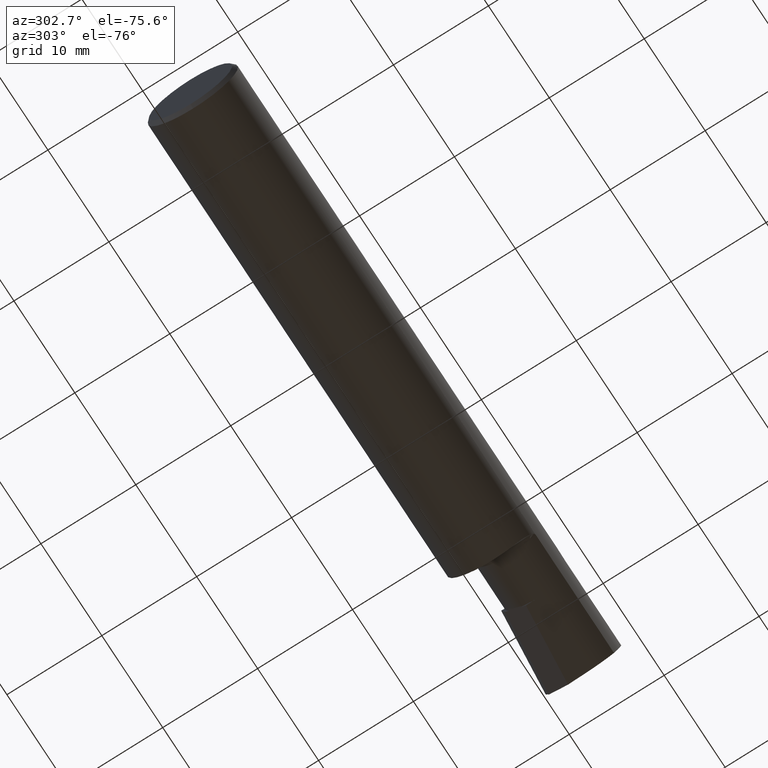
[diagram: clean part render]
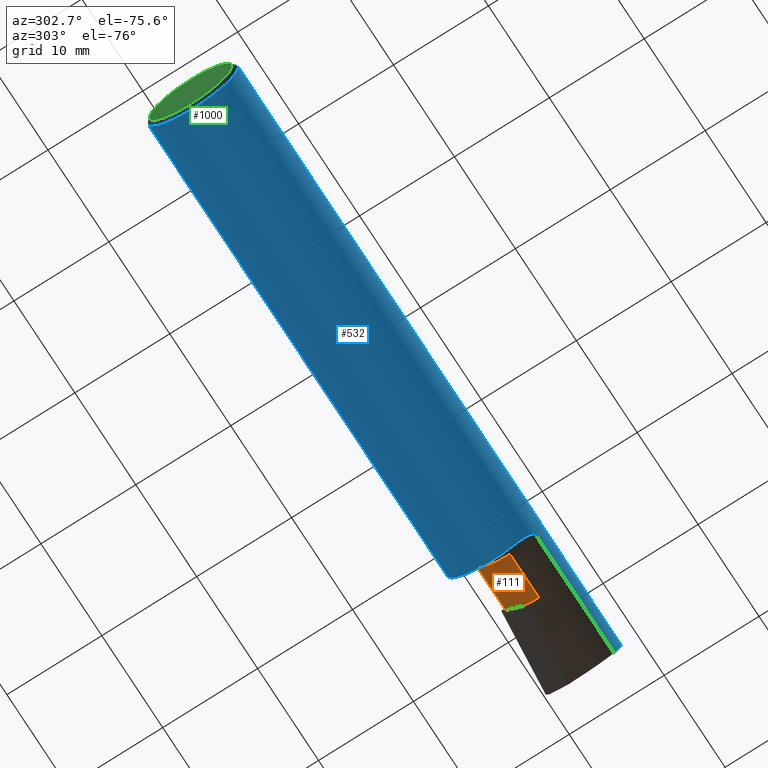
[diagram: same view with three faces highlighted in distinct colors, each labeled with its STEP entity id]
A machine part, auxiliary view with three faces highlighted in distinct colors.
Their STEP definitions:

[orange] entity #111 — the highlighted cylindrical surface (partial cylindrical patch) has radius 3.556 mm, axis along (-1, -0, -0).
#2 = CARTESIAN_POINT ( 'NONE',  ( 2.155148871178937053, 0.06550658106097376199, -0.06713175003679724973 ) ) ;
#4 = CARTESIAN_POINT ( 'NONE',  ( 1.974999999999999867, -0.05734999999999998432, -0.1400000000000000133 ) ) ;
#36 = VERTEX_POINT ( 'NONE', #461 ) ;
#40 = DIRECTION ( 'NONE',  ( 0.000000000000000000, 0.000000000000000000, 1.000000000000000000 ) ) ;
#63 = CARTESIAN_POINT ( 'NONE',  ( 1.949999999999999956, -0.05735000000000000514, 0.000000000000000000 ) ) ;
#67 = DIRECTION ( 'NONE',  ( 1.000000000000000000, 0.000000000000000000, 0.000000000000000000 ) ) ;
#71 = CARTESIAN_POINT ( 'NONE',  ( 2.160000000000000142, 0.01457505805632096189, -0.1201115565780198624 ) ) ;
#75 =( BOUNDED_CURVE ( )  B_SPLINE_CURVE ( 3, ( #640, #254, #343, #727 ),
 .UNSPECIFIED., .F., .T. ) 
 B_SPLINE_CURVE_WITH_KNOTS ( ( 4, 4 ),
 ( 4.461144318190936708, 5.001398664979005204 ),
 .UNSPECIFIED. ) 
 CURVE ( )  GEOMETRIC_REPRESENTATION_ITEM ( )  RATIONAL_B_SPLINE_CURVE ( ( 1.000000000000000000, 0.9758246449535429301, 0.9758246449535429301, 1.000000000000000000 ) ) 
 REPRESENTATION_ITEM ( '' )  );
#79 = VERTEX_POINT ( 'NONE', #550 ) ;
#82 = VECTOR ( 'NONE', #860, 39.37007874015748143 ) ;
#83 = VECTOR ( 'NONE', #146, 39.37007874015748143 ) ;
#87 = CARTESIAN_POINT ( 'NONE',  ( 2.129999999999999893, -0.05735000000000000514, 0.000000000000000000 ) ) ;
#89 = ORIENTED_EDGE ( 'NONE', *, *, #238, .F. ) ;
#107 = ORIENTED_EDGE ( 'NONE', *, *, #627, .F. ) ;
#111 = ADVANCED_FACE ( 'NONE', ( #248 ), #736, .T. ) ;
#114 = DIRECTION ( 'NONE',  ( -1.000000000000000000, -0.000000000000000000, -0.000000000000000000 ) ) ;
#117 = VERTEX_POINT ( 'NONE', #834 ) ;
#126 = VERTEX_POINT ( 'NONE', #71 ) ;
#128 = CARTESIAN_POINT ( 'NONE',  ( 2.152631084800518124, 0.06581154757560825352, -0.06656750858174879937 ) ) ;
#131 = ORIENTED_EDGE ( 'NONE', *, *, #760, .T. ) ;
#133 = EDGE_CURVE ( 'NONE', #138, #79, #846, .T. ) ;
#136 = ORIENTED_EDGE ( 'NONE', *, *, #478, .T. ) ;
#138 = VERTEX_POINT ( 'NONE', #933 ) ;
#146 = DIRECTION ( 'NONE',  ( 1.000000000000000000, 0.000000000000000000, 0.000000000000000000 ) ) ;
#168 = CARTESIAN_POINT ( 'NONE',  ( 2.157616951081173795, 0.01403134646253009592, -0.1204354739152723591 ) ) ;
#186 = CARTESIAN_POINT ( 'NONE',  ( 2.158417962045774630, 0.01421282755745795039, -0.1203279112139161305 ) ) ;
#203 = AXIS2_PLACEMENT_3D ( 'NONE', #382, #114, #377 ) ;
#209 =( BOUNDED_CURVE ( )  B_SPLINE_CURVE ( 3, ( #694, #1087, #1176, #700 ),
 .UNSPECIFIED., .F., .F. ) 
 B_SPLINE_CURVE_WITH_KNOTS ( ( 4, 4 ),
 ( 4.712746123249424102, 6.283185307179586232 ),
 .UNSPECIFIED. ) 
 CURVE ( )  GEOMETRIC_REPRESENTATION_ITEM ( )  RATIONAL_B_SPLINE_CURVE ( ( 1.000000000000000000, 0.8048220259884033556, 0.8048220259884033556, 1.000000000000000000 ) ) 
 REPRESENTATION_ITEM ( '' )  );
#225 = ORIENTED_EDGE ( 'NONE', *, *, #1091, .T. ) ;
#238 = EDGE_CURVE ( 'NONE', #36, #710, #475, .T. ) ;
#248 = FACE_OUTER_BOUND ( 'NONE', #1202, .T. ) ;
#254 = CARTESIAN_POINT ( 'NONE',  ( 2.155966999657742189, 0.03598794709314035584, -0.1074219350815595470 ) ) ;
#266 = AXIS2_PLACEMENT_3D ( 'NONE', #553, #67, #1228 ) ;
#295 = CARTESIAN_POINT ( 'NONE',  ( 2.157605214910747193, 0.06519774435901247445, -0.06769388248219163073 ) ) ;
#316 = CARTESIAN_POINT ( 'NONE',  ( 2.152631084800518124, 0.06581154757560825352, -0.06656750858174879937 ) ) ;
#321 = VERTEX_POINT ( 'NONE', #4 ) ;
#334 = ORIENTED_EDGE ( 'NONE', *, *, #962, .T. ) ;
#336 = CARTESIAN_POINT ( 'NONE',  ( 2.160000000000000142, -0.05734999999999997045, -0.1400000000000000133 ) ) ;
#343 = CARTESIAN_POINT ( 'NONE',  ( 2.154263870478252407, 0.05367561990090638502, -0.08902109991371780218 ) ) ;
#353 = EDGE_CURVE ( 'NONE', #138, #36, #209, .T. ) ;
#370 = CIRCLE ( 'NONE', #266, 0.1400000000000000133 ) ;
#377 = DIRECTION ( 'NONE',  ( 0.000000000000000000, 0.000000000000000000, 1.000000000000000000 ) ) ;
#382 = CARTESIAN_POINT ( 'NONE',  ( 2.160000000000000142, -0.05735000000000000514, 0.000000000000000000 ) ) ;
#404 = CARTESIAN_POINT ( 'NONE',  ( 1.949999999999999956, -0.05734999999999998432, -0.1400000000000000133 ) ) ;
#419 = CARTESIAN_POINT ( 'NONE',  ( 2.160000000000000142, 0.08265000000000000124, -5.122214988120493535E-17 ) ) ;
#444 = AXIS2_PLACEMENT_3D ( 'NONE', #87, #854, #643 ) ;
#450 = DIRECTION ( 'NONE',  ( 0.000000000000000000, 0.000000000000000000, 1.000000000000000000 ) ) ;
#461 = CARTESIAN_POINT ( 'NONE',  ( 1.990050000000000097, -0.05735000000000000514, 0.1400000000000000133 ) ) ;
#466 = CIRCLE ( 'NONE', #203, 0.1400000000000000133 ) ;
#475 = LINE ( 'NONE', #878, #82 ) ;
#478 = EDGE_CURVE ( 'NONE', #79, #990, #1011, .T. ) ;
#529 = DIRECTION ( 'NONE',  ( -1.000000000000000000, -0.000000000000000000, -0.000000000000000000 ) ) ;
#540 =( BOUNDED_CURVE ( )  B_SPLINE_CURVE ( 3, ( #1145, #1046, #186, #168 ),
 .UNSPECIFIED., .F., .T. ) 
 B_SPLINE_CURVE_WITH_KNOTS ( ( 4, 4 ),
 ( 3.402587604115851594, 3.407108222530763619 ),
 .UNSPECIFIED. ) 
 CURVE ( )  GEOMETRIC_REPRESENTATION_ITEM ( )  RATIONAL_B_SPLINE_CURVE ( ( 1.000000000000000000, 0.9999982970014872352, 0.9999982970014872352, 1.000000000000000000 ) ) 
 REPRESENTATION_ITEM ( '' )  );
#545 = AXIS2_PLACEMENT_3D ( 'NONE', #63, #947, #450 ) ;
#550 = CARTESIAN_POINT ( 'NONE',  ( 2.129999999999999893, 0.08265000000000000124, -5.122214988120493535E-17 ) ) ;
#553 = CARTESIAN_POINT ( 'NONE',  ( 1.974999999999999867, -0.05735000000000000514, 0.000000000000000000 ) ) ;
#594 = ORIENTED_EDGE ( 'NONE', *, *, #872, .T. ) ;
#627 = EDGE_CURVE ( 'NONE', #117, #811, #75, .T. ) ;
#638 = ORIENTED_EDGE ( 'NONE', *, *, #1229, .F. ) ;
#640 = CARTESIAN_POINT ( 'NONE',  ( 2.157616951081173795, 0.01403134646253009592, -0.1204354739152723591 ) ) ;
#643 = DIRECTION ( 'NONE',  ( 0.000000000000000000, 0.000000000000000000, 1.000000000000000000 ) ) ;
#694 = CARTESIAN_POINT ( 'NONE',  ( 2.129999999999999893, 0.08264999107142834145, 4.999999999973721212E-05 ) ) ;
#700 = CARTESIAN_POINT ( 'NONE',  ( 1.990050000000000097, -0.05735000000000000514, 0.1400000000000000133 ) ) ;
#704 = LINE ( 'NONE', #404, #1085 ) ;
#710 = VERTEX_POINT ( 'NONE', #987 ) ;
#727 = CARTESIAN_POINT ( 'NONE',  ( 2.152631084800518124, 0.06581154757560825352, -0.06656750858174879937 ) ) ;
#734 = CARTESIAN_POINT ( 'NONE',  ( 2.160000000000000142, -0.05735000000000000514, 0.000000000000000000 ) ) ;
#736 = CYLINDRICAL_SURFACE ( 'NONE', #545, 0.1400000000000000133 ) ;
#760 = EDGE_CURVE ( 'NONE', #126, #935, #466, .T. ) ;
#811 = VERTEX_POINT ( 'NONE', #128 ) ;
#824 = CARTESIAN_POINT ( 'NONE',  ( 2.160000000000000142, 0.06488505205392350317, -0.06825387937234494995 ) ) ;
#834 = CARTESIAN_POINT ( 'NONE',  ( 2.157616951081173795, 0.01403134646253009592, -0.1204354739152723591 ) ) ;
#846 = CIRCLE ( 'NONE', #444, 0.1400000000000000133 ) ;
#854 = DIRECTION ( 'NONE',  ( -1.000000000000000000, -0.000000000000000000, -0.000000000000000000 ) ) ;
#860 = DIRECTION ( 'NONE',  ( -1.000000000000000000, -0.000000000000000000, -0.000000000000000000 ) ) ;
#872 = EDGE_CURVE ( 'NONE', #935, #321, #704, .T. ) ;
#877 = CARTESIAN_POINT ( 'NONE',  ( 2.160000000000000142, 0.06488505205392350317, -0.06825387937234494995 ) ) ;
#878 = CARTESIAN_POINT ( 'NONE',  ( 1.949999999999999956, -0.05735000000000000514, 0.1400000000000000133 ) ) ;
#902 = CARTESIAN_POINT ( 'NONE',  ( 1.949999999999999956, 0.08265000000000000124, -5.122214988120493535E-17 ) ) ;
#933 = CARTESIAN_POINT ( 'NONE',  ( 2.129999999999999893, 0.08264999107142834145, 4.999999999973721212E-05 ) ) ;
#935 = VERTEX_POINT ( 'NONE', #336 ) ;
#940 =( BOUNDED_CURVE ( )  B_SPLINE_CURVE ( 3, ( #316, #2, #295, #877 ),
 .UNSPECIFIED., .F., .T. ) 
 B_SPLINE_CURVE_WITH_KNOTS ( ( 4, 4 ),
 ( 2.866853875742696456, 2.880597703063734638 ),
 .UNSPECIFIED. ) 
 CURVE ( )  GEOMETRIC_REPRESENTATION_ITEM ( )  RATIONAL_B_SPLINE_CURVE ( ( 1.000000000000000000, 0.9999842589961592809, 0.9999842589961592809, 1.000000000000000000 ) ) 
 REPRESENTATION_ITEM ( '' )  );
#947 = DIRECTION ( 'NONE',  ( -1.000000000000000000, -0.000000000000000000, -0.000000000000000000 ) ) ;
#961 = VERTEX_POINT ( 'NONE', #824 ) ;
#962 = EDGE_CURVE ( 'NONE', #990, #961, #1009, .T. ) ;
#987 = CARTESIAN_POINT ( 'NONE',  ( 1.974999999999999867, -0.05735000000000000514, 0.1400000000000000133 ) ) ;
#988 = AXIS2_PLACEMENT_3D ( 'NONE', #734, #529, #40 ) ;
#990 = VERTEX_POINT ( 'NONE', #419 ) ;
#1009 = CIRCLE ( 'NONE', #988, 0.1400000000000000133 ) ;
#1011 = LINE ( 'NONE', #902, #83 ) ;
#1046 = CARTESIAN_POINT ( 'NONE',  ( 2.159212313038161746, 0.01439406506403543770, -0.1202199385842880330 ) ) ;
#1084 = DIRECTION ( 'NONE',  ( -1.000000000000000000, -0.000000000000000000, -0.000000000000000000 ) ) ;
#1085 = VECTOR ( 'NONE', #1084, 39.37007874015748143 ) ;
#1087 = CARTESIAN_POINT ( 'NONE',  ( 2.048013125378817634, 0.08262071004291055010, 0.08203687462118212925 ) ) ;
#1091 = EDGE_CURVE ( 'NONE', #321, #710, #370, .T. ) ;
#1111 = ORIENTED_EDGE ( 'NONE', *, *, #1133, .F. ) ;
#1133 = EDGE_CURVE ( 'NONE', #126, #117, #540, .T. ) ;
#1138 = ORIENTED_EDGE ( 'NONE', *, *, #133, .T. ) ;
#1145 = CARTESIAN_POINT ( 'NONE',  ( 2.160000000000000142, 0.01457505805632096189, -0.1201115565780198624 ) ) ;
#1176 = CARTESIAN_POINT ( 'NONE',  ( 1.990050000000000097, 0.02463687984993753397, 0.1400000000000000133 ) ) ;
#1182 = ORIENTED_EDGE ( 'NONE', *, *, #353, .F. ) ;
#1202 = EDGE_LOOP ( 'NONE', ( #131, #594, #225, #89, #1182, #1138, #136, #334, #638, #107, #1111 ) ) ;
#1228 = DIRECTION ( 'NONE',  ( 0.000000000000000000, 0.000000000000000000, -1.000000000000000000 ) ) ;
#1229 = EDGE_CURVE ( 'NONE', #811, #961, #940, .T. ) ;

[blue] entity #532 — the highlighted cylindrical surface (partial cylindrical patch) has radius 4.7587 mm, axis along (-1, -0, -0).
#10 = DIRECTION ( 'NONE',  ( 1.000000000000000000, -0.000000000000000000, -0.000000000000000000 ) ) ;
#15 = EDGE_CURVE ( 'NONE', #738, #547, #469, .T. ) ;
#24 = DIRECTION ( 'NONE',  ( 0.000000000000000000, 0.000000000000000000, -1.000000000000000000 ) ) ;
#25 = CARTESIAN_POINT ( 'NONE',  ( 2.500000000000000000, 0.000000000000000000, 0.000000000000000000 ) ) ;
#32 = ORIENTED_EDGE ( 'NONE', *, *, #769, .T. ) ;
#34 = DIRECTION ( 'NONE',  ( -1.000000000000000000, -0.000000000000000000, -0.000000000000000000 ) ) ;
#35 = CARTESIAN_POINT ( 'NONE',  ( 2.055000000000000160, -0.1638103312990409621, 0.09091863318208455447 ) ) ;
#48 = CARTESIAN_POINT ( 'NONE',  ( 1.953055633636521238, -0.1313739682810962928, 0.1338358455653453349 ) ) ;
#59 = ORIENTED_EDGE ( 'NONE', *, *, #253, .T. ) ;
#90 = CARTESIAN_POINT ( 'NONE',  ( 1.949999999999999956, 0.000000000000000000, 0.000000000000000000 ) ) ;
#94 = DIRECTION ( 'NONE',  ( 0.000000000000000000, 0.000000000000000000, -1.000000000000000000 ) ) ;
#106 = AXIS2_PLACEMENT_3D ( 'NONE', #90, #952, #283 ) ;
#119 = B_SPLINE_CURVE_WITH_KNOTS ( 'NONE', 3,
 ( #449, #153, #1201, #536, #459, #919, #441, #1022, #1041, #174, #434, #156, #826, #560 ),
 .UNSPECIFIED., .F., .F.,
 ( 4, 2, 2, 2, 2, 2, 4 ),
 ( 0.000000000000000000, 0.001305037179322218526, 0.001957555768983328982, 0.002283815063813888005, 0.002446944711229167516, 0.002528509534936807055, 0.002610074358644447028 ),
 .UNSPECIFIED. ) ;
#132 = CARTESIAN_POINT ( 'NONE',  ( 1.972777100653655857, -0.1638103312990409621, 0.09091863318208452671 ) ) ;
#152 = LINE ( 'NONE', #535, #507 ) ;
#153 = CARTESIAN_POINT ( 'NONE',  ( 1.950000000000000178, -0.1121582248191967529, -0.1510682350311045308 ) ) ;
#156 = CARTESIAN_POINT ( 'NONE',  ( 1.972840674314865206, -0.1636246794996689680, -0.09125411854529373590 ) ) ;
#165 = CARTESIAN_POINT ( 'NONE',  ( 2.129999999999999893, -0.1873499999999999888, -5.122214988120493535E-17 ) ) ;
#167 = ORIENTED_EDGE ( 'NONE', *, *, #985, .T. ) ;
#174 = CARTESIAN_POINT ( 'NONE',  ( 1.970189999030982575, -0.1626959459647696615, -0.09290157280053062960 ) ) ;
#195 = EDGE_CURVE ( 'NONE', #394, #509, #1163, .T. ) ;
#206 = CARTESIAN_POINT ( 'NONE',  ( 1.949999999999999956, 0.06597272163553669078, 0.1753499999999999504 ) ) ;
#211 = DIRECTION ( 'NONE',  ( 0.000000000000000000, 0.000000000000000000, -1.000000000000000000 ) ) ;
#217 = CARTESIAN_POINT ( 'NONE',  ( 1.974999999999999867, -0.1638103312990409621, 0.09091863318208455447 ) ) ;
#226 = CARTESIAN_POINT ( 'NONE',  ( 1.949999999999999956, 0.000000000000000000, 0.000000000000000000 ) ) ;
#235 = CARTESIAN_POINT ( 'NONE',  ( 2.129999999999999893, 0.000000000000000000, 0.000000000000000000 ) ) ;
#251 = CARTESIAN_POINT ( 'NONE',  ( 1.966820189548994513, -0.1604991259183327357, 0.09666276023984569921 ) ) ;
#253 = EDGE_CURVE ( 'NONE', #509, #731, #726, .T. ) ;
#267 = CARTESIAN_POINT ( 'NONE',  ( 1.974999999999999867, -0.1638103312990409621, -0.09091863318208454059 ) ) ;
#283 = DIRECTION ( 'NONE',  ( 0.000000000000000000, 0.000000000000000000, -1.000000000000000000 ) ) ;
#285 = VECTOR ( 'NONE', #1194, 39.37007874015748143 ) ;
#300 = CARTESIAN_POINT ( 'NONE',  ( 0.01499999999999970281, 0.06597272163553669078, 0.1753499999999999504 ) ) ;
#313 = CARTESIAN_POINT ( 'NONE',  ( 2.500000000000000000, -0.1873499999999999888, -5.122214988120493535E-17 ) ) ;
#324 = DIRECTION ( 'NONE',  ( -1.000000000000000000, -0.000000000000000000, -0.000000000000000000 ) ) ;
#331 = LINE ( 'NONE', #313, #850 ) ;
#357 = CARTESIAN_POINT ( 'NONE',  ( 2.129999999999999893, -0.1873499933279955953, 4.999999999982257949E-05 ) ) ;
#394 = VERTEX_POINT ( 'NONE', #914 ) ;
#396 = CARTESIAN_POINT ( 'NONE',  ( 2.500000000000000000, -0.06597272163553669078, 0.1753499999999999504 ) ) ;
#401 = DIRECTION ( 'NONE',  ( -1.000000000000000000, -0.000000000000000000, -0.000000000000000000 ) ) ;
#403 = ORIENTED_EDGE ( 'NONE', *, *, #943, .T. ) ;
#412 = DIRECTION ( 'NONE',  ( 0.000000000000000000, 0.000000000000000000, 1.000000000000000000 ) ) ;
#428 = CARTESIAN_POINT ( 'NONE',  ( 1.958083892694890915, -0.1481320745012531248, 0.1149978200212186386 ) ) ;
#433 = CARTESIAN_POINT ( 'NONE',  ( 2.039131366817915847, -0.1638103312990411287, 0.09091863318208429079 ) ) ;
#434 = CARTESIAN_POINT ( 'NONE',  ( 1.970995166993151804, -0.1630642369507196154, -0.09225185375117120334 ) ) ;
#440 = EDGE_CURVE ( 'NONE', #777, #1099, #897, .T. ) ;
#441 = CARTESIAN_POINT ( 'NONE',  ( 1.963785644846119283, -0.1575401255976144610, -0.1014675241828077723 ) ) ;
#447 = CARTESIAN_POINT ( 'NONE',  ( 1.970880672106478437, -0.1630858754590936155, 0.09222616861846125169 ) ) ;
#449 = CARTESIAN_POINT ( 'NONE',  ( 1.949999999999999956, -0.09733256320836958242, -0.1600824619978364061 ) ) ;
#452 = ORIENTED_EDGE ( 'NONE', *, *, #1169, .F. ) ;
#459 = CARTESIAN_POINT ( 'NONE',  ( 1.958100164318232972, -0.1481727551980330515, -0.1149458746526181852 ) ) ;
#468 = LINE ( 'NONE', #1238, #487 ) ;
#469 =( BOUNDED_CURVE ( )  B_SPLINE_CURVE ( 3, ( #1136, #651, #657, #636 ),
 .UNSPECIFIED., .F., .F. ) 
 B_SPLINE_CURVE_WITH_KNOTS ( ( 4, 4 ),
 ( 0.8524534836708039798, 1.359145557743629329 ),
 .UNSPECIFIED. ) 
 CURVE ( )  GEOMETRIC_REPRESENTATION_ITEM ( )  RATIONAL_B_SPLINE_CURVE ( ( 1.000000000000000000, 0.9787194509970484901, 0.9787194509970484901, 1.000000000000000000 ) ) 
 REPRESENTATION_ITEM ( '' )  );
#487 = VECTOR ( 'NONE', #761, 39.37007874015748143 ) ;
#506 = VECTOR ( 'NONE', #401, 39.37007874015748143 ) ;
#507 = VECTOR ( 'NONE', #918, 39.37007874015748143 ) ;
#509 = VERTEX_POINT ( 'NONE', #1188 ) ;
#514 = CARTESIAN_POINT ( 'NONE',  ( 1.950389398004140906, -0.1117682938813370913, 0.1506046933866692639 ) ) ;
#516 = EDGE_CURVE ( 'NONE', #547, #579, #331, .T. ) ;
#520 = ORIENTED_EDGE ( 'NONE', *, *, #874, .F. ) ;
#532 = ADVANCED_FACE ( 'NONE', ( #982 ), #890, .T. ) ;
#535 = CARTESIAN_POINT ( 'NONE',  ( 2.500000000000000000, 0.06597272163553669078, 0.1753499999999999504 ) ) ;
#536 = CARTESIAN_POINT ( 'NONE',  ( 1.956146388037310890, -0.1428368795188332541, -0.1215336891450345819 ) ) ;
#539 = CARTESIAN_POINT ( 'NONE',  ( 1.949999999999999956, -0.09733256320836958242, 0.1600824619978364061 ) ) ;
#547 = VERTEX_POINT ( 'NONE', #1017 ) ;
#560 = CARTESIAN_POINT ( 'NONE',  ( 1.974999999999999867, -0.1638103312990409621, -0.09091863318208454059 ) ) ;
#565 = VERTEX_POINT ( 'NONE', #267 ) ;
#567 = AXIS2_PLACEMENT_3D ( 'NONE', #235, #34, #1007 ) ;
#570 = CARTESIAN_POINT ( 'NONE',  ( 0.01499999999999970281, 0.000000000000000000, 0.000000000000000000 ) ) ;
#574 = EDGE_CURVE ( 'NONE', #1081, #565, #119, .T. ) ;
#579 = VERTEX_POINT ( 'NONE', #165 ) ;
#607 = ORIENTED_EDGE ( 'NONE', *, *, #701, .F. ) ;
#633 = CARTESIAN_POINT ( 'NONE',  ( 1.963753205634964916, -0.1574980287315798644, 0.1015329404508964611 ) ) ;
#636 = CARTESIAN_POINT ( 'NONE',  ( 2.491610341700249531, -0.1873500000000000165, -1.707404996040164512E-17 ) ) ;
#651 = CARTESIAN_POINT ( 'NONE',  ( 2.484092400167221992, -0.1793328340739938909, -0.06295135922336908552 ) ) ;
#657 = CARTESIAN_POINT ( 'NONE',  ( 2.487682931109862494, -0.1873500000000000443, -0.03198619241298101407 ) ) ;
#677 = ORIENTED_EDGE ( 'NONE', *, *, #574, .T. ) ;
#685 = CARTESIAN_POINT ( 'NONE',  ( 0.01499999999999970281, 0.000000000000000000, 0.000000000000000000 ) ) ;
#701 = EDGE_CURVE ( 'NONE', #1081, #773, #707, .T. ) ;
#707 = CIRCLE ( 'NONE', #1052, 0.1873499999999999888 ) ;
#712 = CARTESIAN_POINT ( 'NONE',  ( 1.949999999999999956, -0.1047391580806799199, 0.1555791400563131532 ) ) ;
#723 = CARTESIAN_POINT ( 'NONE',  ( 1.967979131110394464, -0.1614597744168066451, 0.09504425389035228711 ) ) ;
#726 = CIRCLE ( 'NONE', #1104, 0.1873499999999999888 ) ;
#728 = AXIS2_PLACEMENT_3D ( 'NONE', #685, #1048, #211 ) ;
#731 = VERTEX_POINT ( 'NONE', #1175 ) ;
#738 = VERTEX_POINT ( 'NONE', #1170 ) ;
#756 = ORIENTED_EDGE ( 'NONE', *, *, #516, .T. ) ;
#761 = DIRECTION ( 'NONE',  ( -1.000000000000000000, -0.000000000000000000, -0.000000000000000000 ) ) ;
#769 = EDGE_CURVE ( 'NONE', #731, #1248, #789, .T. ) ;
#773 = VERTEX_POINT ( 'NONE', #206 ) ;
#777 = VERTEX_POINT ( 'NONE', #217 ) ;
#789 = CIRCLE ( 'NONE', #728, 0.1873499999999999888 ) ;
#801 = DIRECTION ( 'NONE',  ( -1.000000000000000000, -0.000000000000000000, -0.000000000000000000 ) ) ;
#813 = CARTESIAN_POINT ( 'NONE',  ( 1.951915782853726133, -0.1250907634329649631, 0.1397362733544715296 ) ) ;
#826 = CARTESIAN_POINT ( 'NONE',  ( 1.973901683453108680, -0.1638103312990410731, -0.09091863318208451283 ) ) ;
#831 = CARTESIAN_POINT ( 'NONE',  ( 2.098031022618434882, -0.1873414614415477852, 0.03201897738156438133 ) ) ;
#850 = VECTOR ( 'NONE', #801, 39.37007874015748143 ) ;
#851 = VERTEX_POINT ( 'NONE', #1179 ) ;
#857 = ORIENTED_EDGE ( 'NONE', *, *, #1042, .T. ) ;
#859 = DIRECTION ( 'NONE',  ( 1.000000000000000000, 0.000000000000000000, 0.000000000000000000 ) ) ;
#868 = EDGE_LOOP ( 'NONE', ( #520, #998, #756, #167, #403, #1192, #1177, #452, #876, #59, #32, #857, #607, #677 ) ) ;
#874 = EDGE_CURVE ( 'NONE', #738, #565, #468, .T. ) ;
#876 = ORIENTED_EDGE ( 'NONE', *, *, #195, .T. ) ;
#886 = CARTESIAN_POINT ( 'NONE',  ( 2.129999999999999893, -0.1873499933279955953, 4.999999999982257949E-05 ) ) ;
#890 = CYLINDRICAL_SURFACE ( 'NONE', #949, 0.1873499999999999888 ) ;
#897 = LINE ( 'NONE', #35, #285 ) ;
#901 = CARTESIAN_POINT ( 'NONE',  ( 2.067083589730448256, -0.1793244803850901348, 0.06296641026955154818 ) ) ;
#913 = CARTESIAN_POINT ( 'NONE',  ( 1.962196616839661401, -0.1552598778648322519, 0.1049346926750953368 ) ) ;
#914 = CARTESIAN_POINT ( 'NONE',  ( 1.949999999999999956, -0.06597272163553676017, 0.1753499999999999504 ) ) ;
#918 = DIRECTION ( 'NONE',  ( 1.000000000000000000, 0.000000000000000000, 0.000000000000000000 ) ) ;
#919 = CARTESIAN_POINT ( 'NONE',  ( 1.962224813616204155, -0.1553024230369473013, -0.1048718462911326088 ) ) ;
#943 = EDGE_CURVE ( 'NONE', #1236, #1099, #1110, .T. ) ;
#949 = AXIS2_PLACEMENT_3D ( 'NONE', #25, #324, #412 ) ;
#952 = DIRECTION ( 'NONE',  ( 1.000000000000000000, 0.000000000000000000, 0.000000000000000000 ) ) ;
#964 = EDGE_CURVE ( 'NONE', #777, #851, #1142, .T. ) ;
#982 = FACE_OUTER_BOUND ( 'NONE', #868, .T. ) ;
#985 = EDGE_CURVE ( 'NONE', #579, #1236, #1153, .T. ) ;
#998 = ORIENTED_EDGE ( 'NONE', *, *, #15, .T. ) ;
#1007 = DIRECTION ( 'NONE',  ( 0.000000000000000000, 0.000000000000000000, 1.000000000000000000 ) ) ;
#1017 = CARTESIAN_POINT ( 'NONE',  ( 2.491610341700249531, -0.1873500000000000165, -1.707404996040164512E-17 ) ) ;
#1021 = CARTESIAN_POINT ( 'NONE',  ( 1.956161505363091413, -0.1428679346373857573, 0.1214903549775089575 ) ) ;
#1022 = CARTESIAN_POINT ( 'NONE',  ( 1.966864818893330868, -0.1605374641844546924, -0.09659905215632356990 ) ) ;
#1034 = CARTESIAN_POINT ( 'NONE',  ( 2.039131366817915847, -0.1638103312990411287, 0.09091863318208429079 ) ) ;
#1041 = CARTESIAN_POINT ( 'NONE',  ( 1.968017972881707545, -0.1614870495856035315, -0.09499767136551431901 ) ) ;
#1042 = EDGE_CURVE ( 'NONE', #1248, #773, #152, .T. ) ;
#1048 = DIRECTION ( 'NONE',  ( 1.000000000000000000, -0.000000000000000000, -0.000000000000000000 ) ) ;
#1052 = AXIS2_PLACEMENT_3D ( 'NONE', #226, #859, #24 ) ;
#1081 = VERTEX_POINT ( 'NONE', #1132 ) ;
#1099 = VERTEX_POINT ( 'NONE', #1034 ) ;
#1104 = AXIS2_PLACEMENT_3D ( 'NONE', #570, #10, #94 ) ;
#1110 =( BOUNDED_CURVE ( )  B_SPLINE_CURVE ( 3, ( #357, #831, #901, #433 ),
 .UNSPECIFIED., .F., .T. ) 
 B_SPLINE_CURVE_WITH_KNOTS ( ( 4, 4 ),
 ( 4.712655860558660592, 5.219081054457509694 ),
 .UNSPECIFIED. ) 
 CURVE ( )  GEOMETRIC_REPRESENTATION_ITEM ( )  RATIONAL_B_SPLINE_CURVE ( ( 1.000000000000000000, 0.9787417426078520721, 0.9787417426078520721, 1.000000000000000000 ) ) 
 REPRESENTATION_ITEM ( '' )  );
#1112 = CARTESIAN_POINT ( 'NONE',  ( 1.974999999999999867, -0.1638103312990409621, 0.09091863318208455447 ) ) ;
#1132 = CARTESIAN_POINT ( 'NONE',  ( 1.949999999999999956, -0.09733256320836958242, -0.1600824619978364061 ) ) ;
#1136 = CARTESIAN_POINT ( 'NONE',  ( 2.481067974281338628, -0.1638103312990408233, -0.09091863318208463773 ) ) ;
#1142 = B_SPLINE_CURVE_WITH_KNOTS ( 'NONE', 3,
 ( #1112, #132, #447, #723, #251, #633, #913, #428, #1021, #48, #813, #514, #712, #539 ),
 .UNSPECIFIED., .F., .F.,
 ( 4, 2, 2, 2, 2, 2, 4 ),
 ( 0.000000000000000000, 0.0001666750780902321151, 0.0003333501561804642303, 0.0006667003123609172932, 0.001333400624721816589, 0.002000100937082715993, 0.002666801249443615397 ),
 .UNSPECIFIED. ) ;
#1153 = CIRCLE ( 'NONE', #567, 0.1873499999999999888 ) ;
#1163 = LINE ( 'NONE', #396, #506 ) ;
#1169 = EDGE_CURVE ( 'NONE', #394, #851, #1187, .T. ) ;
#1170 = CARTESIAN_POINT ( 'NONE',  ( 2.481067974281338628, -0.1638103312990408233, -0.09091863318208463773 ) ) ;
#1175 = CARTESIAN_POINT ( 'NONE',  ( 0.01499999999999970281, 0.000000000000000000, -0.1873499999999999888 ) ) ;
#1177 = ORIENTED_EDGE ( 'NONE', *, *, #964, .T. ) ;
#1179 = CARTESIAN_POINT ( 'NONE',  ( 1.949999999999999956, -0.09733256320836958242, 0.1600824619978364061 ) ) ;
#1187 = CIRCLE ( 'NONE', #106, 0.1873499999999999888 ) ;
#1188 = CARTESIAN_POINT ( 'NONE',  ( 0.01499999999999970281, -0.06597272163553676017, 0.1753499999999999504 ) ) ;
#1192 = ORIENTED_EDGE ( 'NONE', *, *, #440, .F. ) ;
#1194 = DIRECTION ( 'NONE',  ( 1.000000000000000000, 0.000000000000000000, 0.000000000000000000 ) ) ;
#1201 = CARTESIAN_POINT ( 'NONE',  ( 1.951449863870115875, -0.1253810164468798782, -0.1402525586442743832 ) ) ;
#1236 = VERTEX_POINT ( 'NONE', #886 ) ;
#1238 = CARTESIAN_POINT ( 'NONE',  ( 2.055000000000000160, -0.1638103312990409621, -0.09091863318208454059 ) ) ;
#1248 = VERTEX_POINT ( 'NONE', #300 ) ;

[green] entity #1000 — the highlighted planar face has unit normal (1, 0, 0).
#144 = DIRECTION ( 'NONE',  ( 1.000000000000000000, 0.000000000000000000, 0.000000000000000000 ) ) ;
#207 = CARTESIAN_POINT ( 'NONE',  ( 0.000000000000000000, 0.000000000000000000, 0.000000000000000000 ) ) ;
#258 = FACE_OUTER_BOUND ( 'NONE', #275, .T. ) ;
#275 = EDGE_LOOP ( 'NONE', ( #1144, #1154 ) ) ;
#277 = EDGE_CURVE ( 'NONE', #983, #380, #564, .T. ) ;
#325 = AXIS2_PLACEMENT_3D ( 'NONE', #615, #1172, #610 ) ;
#376 = EDGE_CURVE ( 'NONE', #380, #983, #1068, .T. ) ;
#380 = VERTEX_POINT ( 'NONE', #1080 ) ;
#383 = DIRECTION ( 'NONE',  ( -1.000000000000000000, -0.000000000000000000, -0.000000000000000000 ) ) ;
#564 = CIRCLE ( 'NONE', #666, 0.1723500000000004195 ) ;
#604 = AXIS2_PLACEMENT_3D ( 'NONE', #1186, #144, #819 ) ;
#610 = DIRECTION ( 'NONE',  ( 0.000000000000000000, 0.000000000000000000, -1.000000000000000000 ) ) ;
#615 = CARTESIAN_POINT ( 'NONE',  ( 0.000000000000000000, 0.000000000000000000, 0.000000000000000000 ) ) ;
#666 = AXIS2_PLACEMENT_3D ( 'NONE', #207, #383, #1156 ) ;
#739 = CARTESIAN_POINT ( 'NONE',  ( 0.000000000000000000, 0.000000000000000000, -0.1723500000000004195 ) ) ;
#819 = DIRECTION ( 'NONE',  ( 0.000000000000000000, 0.000000000000000000, -1.000000000000000000 ) ) ;
#983 = VERTEX_POINT ( 'NONE', #739 ) ;
#992 = PLANE ( 'NONE',  #604 ) ;
#1000 = ADVANCED_FACE ( 'NONE', ( #258 ), #992, .F. ) ;
#1068 = CIRCLE ( 'NONE', #325, 0.1723500000000004195 ) ;
#1080 = CARTESIAN_POINT ( 'NONE',  ( 0.000000000000000000, 2.202527268266516892E-17, 0.1723500000000004195 ) ) ;
#1144 = ORIENTED_EDGE ( 'NONE', *, *, #277, .T. ) ;
#1154 = ORIENTED_EDGE ( 'NONE', *, *, #376, .T. ) ;
#1156 = DIRECTION ( 'NONE',  ( 0.000000000000000000, 0.000000000000000000, -1.000000000000000000 ) ) ;
#1172 = DIRECTION ( 'NONE',  ( -1.000000000000000000, -0.000000000000000000, -0.000000000000000000 ) ) ;
#1186 = CARTESIAN_POINT ( 'NONE',  ( 0.000000000000000000, 0.000000000000000000, 0.000000000000000000 ) ) ;